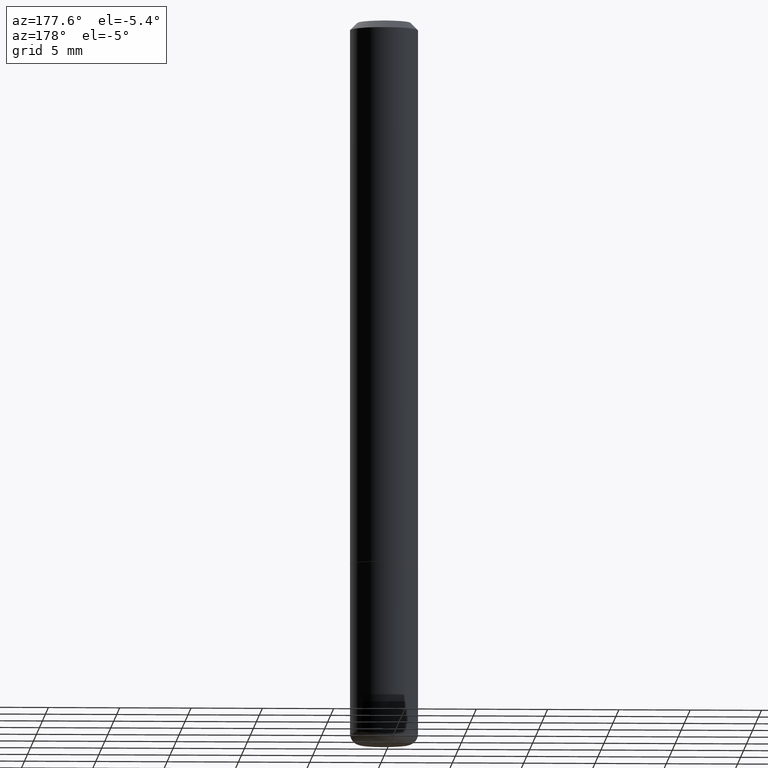
[diagram: clean part render]
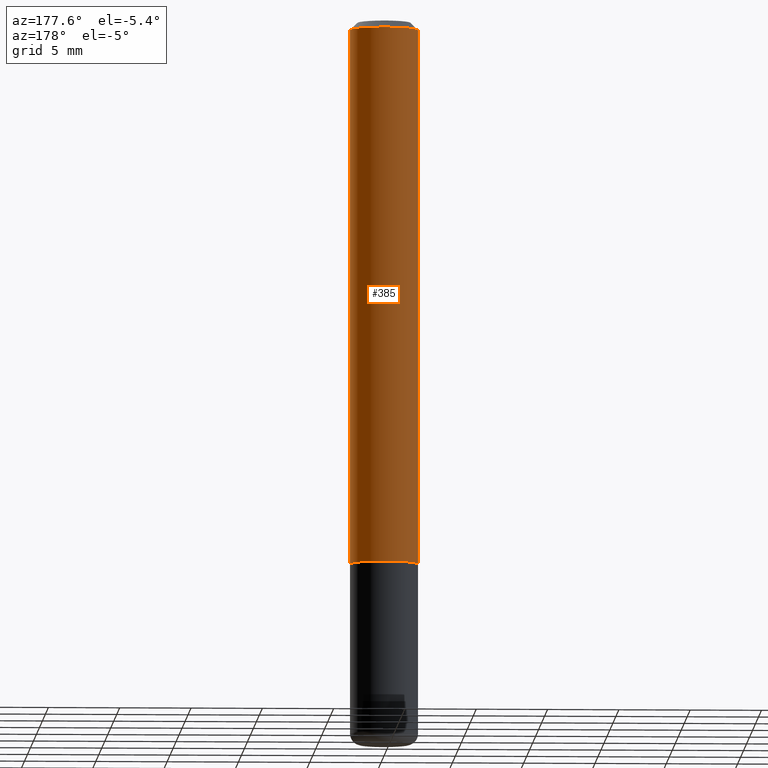
[diagram: same view with one face highlighted and labeled with its STEP entity id]
A machine part, auxiliary view. The second image highlights one B-rep face of the part: STEP entity #385.
In plain terms, the highlighted cylindrical surface (edge-blend (fillet) strip) has radius 2.3813 mm, axis along (-0, 0, 1).
Its self-contained STEP definition (entity closure, byte-faithful):
#27 = LINE ( 'NONE', #137, #174 ) ;
#31 = EDGE_CURVE ( 'NONE', #295, #201, #157, .T. ) ;
#36 = CARTESIAN_POINT ( 'NONE',  ( 0.09375000000000020817, -5.888383277958964251E-15, -1.498999999999999666 ) ) ;
#57 = DIRECTION ( 'NONE',  ( -2.445468806185136597E-29, 3.491481338843145583E-15, 1.000000000000000000 ) ) ;
#61 = CARTESIAN_POINT ( 'NONE',  ( 3.665757740471518732E-29, -5.233730526925875170E-15, -1.498999999999999666 ) ) ;
#67 = CARTESIAN_POINT ( 'NONE',  ( -0.09375000000000001388, 5.848231242562245017E-16, -0.02000000000000001776 ) ) ;
#76 = CARTESIAN_POINT ( 'NONE',  ( 0.000000000000000000, 0.000000000000000000, 0.000000000000000000 ) ) ;
#106 = DIRECTION ( 'NONE',  ( -2.445468806185136597E-29, 3.491481338843145583E-15, 1.000000000000000000 ) ) ;
#129 = EDGE_LOOP ( 'NONE', ( #258, #394, #226, #184 ) ) ;
#137 = CARTESIAN_POINT ( 'NONE',  ( 0.09375000000000011102, -6.546527510330881944E-16, 4.571415727308695411E-30 ) ) ;
#157 = CIRCLE ( 'NONE', #248, 0.09375000000000020817 ) ;
#168 = DIRECTION ( 'NONE',  ( 1.000000000000000000, -6.982962677686265922E-15, 0.000000000000000000 ) ) ;
#174 = VECTOR ( 'NONE', #350, 39.37007874015748143 ) ;
#180 = VERTEX_POINT ( 'NONE', #287 ) ;
#182 = AXIS2_PLACEMENT_3D ( 'NONE', #76, #106, #298 ) ;
#184 = ORIENTED_EDGE ( 'NONE', *, *, #237, .F. ) ;
#185 = EDGE_CURVE ( 'NONE', #180, #270, #309, .T. ) ;
#198 = DIRECTION ( 'NONE',  ( -2.445468806185136877E-29, 3.491481338843145188E-15, 1.000000000000000000 ) ) ;
#201 = VERTEX_POINT ( 'NONE', #353 ) ;
#226 = ORIENTED_EDGE ( 'NONE', *, *, #185, .F. ) ;
#227 = DIRECTION ( 'NONE',  ( -2.445468806185136597E-29, 3.491481338843145583E-15, 1.000000000000000000 ) ) ;
#237 = EDGE_CURVE ( 'NONE', #295, #180, #27, .T. ) ;
#241 = VECTOR ( 'NONE', #198, 39.37007874015748143 ) ;
#248 = AXIS2_PLACEMENT_3D ( 'NONE', #61, #57, #402 ) ;
#254 = CARTESIAN_POINT ( 'NONE',  ( -0.09375000000000011102, 6.661338147750947131E-16, -4.611501647113979600E-30 ) ) ;
#257 = LINE ( 'NONE', #254, #241 ) ;
#258 = ORIENTED_EDGE ( 'NONE', *, *, #31, .T. ) ;
#270 = VERTEX_POINT ( 'NONE', #67 ) ;
#277 = CYLINDRICAL_SURFACE ( 'NONE', #182, 0.09375000000000011102 ) ;
#287 = CARTESIAN_POINT ( 'NONE',  ( 0.09375000000000001388, -7.130013140679441850E-16, -0.02000000000000001776 ) ) ;
#295 = VERTEX_POINT ( 'NONE', #36 ) ;
#296 = FACE_OUTER_BOUND ( 'NONE', #129, .T. ) ;
#298 = DIRECTION ( 'NONE',  ( 1.000000000000000000, -6.982962677686265922E-15, 4.876176775795935793E-29 ) ) ;
#309 = CIRCLE ( 'NONE', #347, 0.09375000000000001388 ) ;
#311 = EDGE_CURVE ( 'NONE', #201, #270, #257, .T. ) ;
#347 = AXIS2_PLACEMENT_3D ( 'NONE', #383, #227, #168 ) ;
#350 = DIRECTION ( 'NONE',  ( -2.445468806185136877E-29, 3.491481338843145188E-15, 1.000000000000000000 ) ) ;
#353 = CARTESIAN_POINT ( 'NONE',  ( -0.09375000000000020817, -1.985646262076270971E-15, -1.498999999999999666 ) ) ;
#383 = CARTESIAN_POINT ( 'NONE',  ( 4.890937612370276662E-31, -6.982962677686296539E-17, -0.02000000000000001776 ) ) ;
#385 = ADVANCED_FACE ( 'NONE', ( #296 ), #277, .T. ) ;
#394 = ORIENTED_EDGE ( 'NONE', *, *, #311, .T. ) ;
#402 = DIRECTION ( 'NONE',  ( 1.000000000000000000, -6.982962677686268288E-15, 0.000000000000000000 ) ) ;